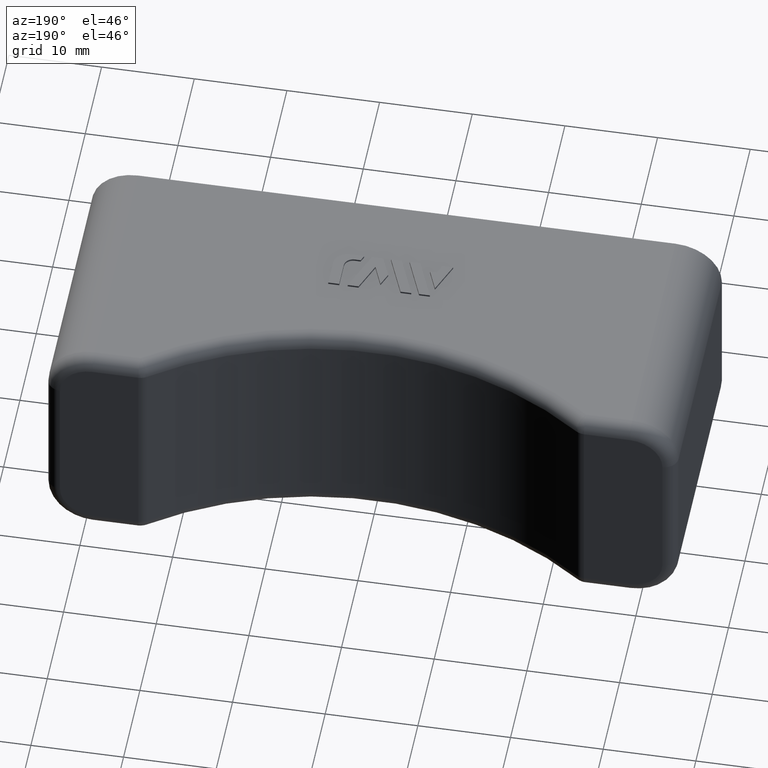
[diagram: clean part render]
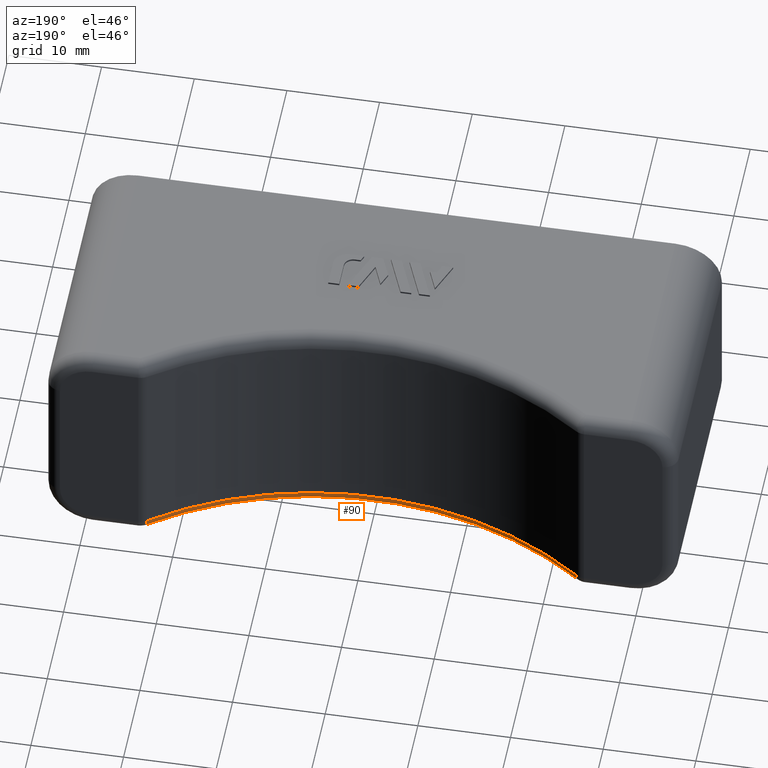
[diagram: same view with one face highlighted and labeled with its STEP entity id]
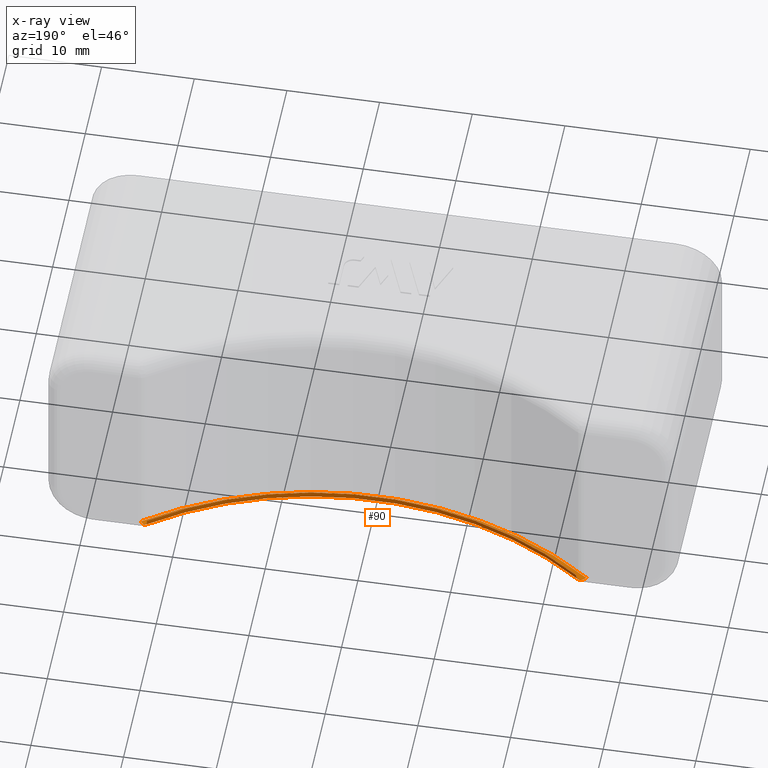
[diagram: x-ray of the same camera — body ghosted, the highlighted face saturated]
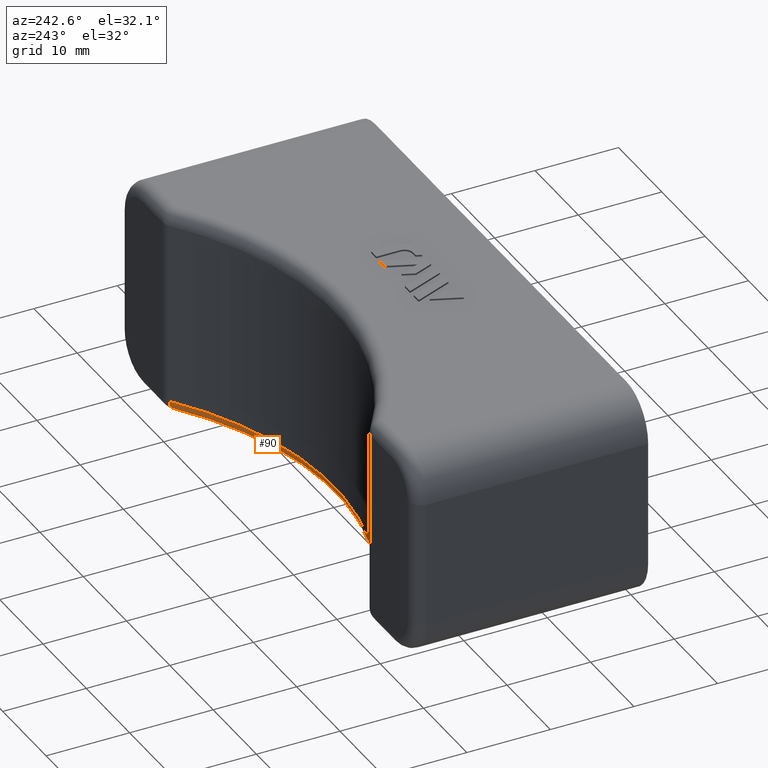
[diagram: same view with one face highlighted and labeled with its STEP entity id]
A machine part, auxiliary view. The second image highlights one B-rep face of the part: STEP entity #90.
The next image is the same camera in x-ray: the body ghosted, the highlighted face saturated — about 0% of this face is hidden behind the body in this view.
A second angle (auxiliary view) of the same face is appended — the face is thin or edge-on in the first view.
In plain terms, the highlighted toroidal blend (fillet) surface has major radius 40.15 mm and minor (blend) radius 1.5 mm.
Its self-contained STEP definition (entity closure, byte-faithful):
#90 = ADVANCED_FACE( '', ( #554 ), #555, .T. );
#554 = FACE_OUTER_BOUND( '', #1396, .T. );
#555 = TOROIDAL_SURFACE( '', #1397, 40.1500000000000, 1.50000000000000 );
#1396 = EDGE_LOOP( '', ( #2571, #2572, #2573, #2574 ) );
#1397 = AXIS2_PLACEMENT_3D( '', #2575, #2576, #2577 );
#2571 = ORIENTED_EDGE( '', *, *, #5667, .T. );
#2572 = ORIENTED_EDGE( '', *, *, #5664, .F. );
#2573 = ORIENTED_EDGE( '', *, *, #5668, .F. );
#2574 = ORIENTED_EDGE( '', *, *, #5669, .F. );
#2575 = CARTESIAN_POINT( '', ( 0.000000000000000, 58.6500000000000, -11.0000000000000 ) );
#2576 = DIRECTION( '', ( 0.000000000000000, 0.000000000000000, -1.00000000000000 ) );
#2577 = DIRECTION( '', ( -1.00000000000000, 0.000000000000000, 0.000000000000000 ) );
#5664 = EDGE_CURVE( '', #6981, #6986, #6987, .F. );
#5667 = EDGE_CURVE( '', #6991, #6986, #6992, .F. );
#5668 = EDGE_CURVE( '', #6993, #6981, #6994, .T. );
#5669 = EDGE_CURVE( '', #6991, #6993, #6995, .T. );
#6981 = VERTEX_POINT( '', #8953 );
#6986 = VERTEX_POINT( '', #8961 );
#6987 = CIRCLE( '', #8962, 40.1500000000000 );
#6991 = VERTEX_POINT( '', #8968 );
#6992 = CIRCLE( '', #8969, 1.50000000000000 );
#6993 = VERTEX_POINT( '', #8970 );
#6994 = CIRCLE( '', #8971, 1.50000000000000 );
#6995 = CIRCLE( '', #8972, 38.6500000000000 );
#8953 = CARTESIAN_POINT( '', ( -24.0499480248919, 26.5000000000000, -12.5000000000000 ) );
#8961 = CARTESIAN_POINT( '', ( 24.0499480248919, 26.5000000000000, -12.5000000000000 ) );
#8962 = AXIS2_PLACEMENT_3D( '', #10796, #10797, #10798 );
#8968 = CARTESIAN_POINT( '', ( 23.1514443626917, 27.7011207970112, -11.0000000000000 ) );
#8969 = AXIS2_PLACEMENT_3D( '', #10801, #10802, #10803 );
#8970 = CARTESIAN_POINT( '', ( -23.1514443626917, 27.7011207970112, -11.0000000000000 ) );
#8971 = AXIS2_PLACEMENT_3D( '', #10804, #10805, #10806 );
#8972 = AXIS2_PLACEMENT_3D( '', #10807, #10808, #10809 );
#10796 = CARTESIAN_POINT( '', ( 0.000000000000000, 58.6500000000000, -12.5000000000000 ) );
#10797 = DIRECTION( '', ( 0.000000000000000, 0.000000000000000, -1.00000000000000 ) );
#10798 = DIRECTION( '', ( -1.00000000000000, 0.000000000000000, 0.000000000000000 ) );
#10801 = CARTESIAN_POINT( '', ( 24.0499480248919, 26.5000000000000, -11.0000000000000 ) );
#10802 = DIRECTION( '', ( 0.800747198007473, 0.599002441466795, 0.000000000000000 ) );
#10803 = DIRECTION( '', ( -0.599002441466795, 0.800747198007473, 0.000000000000000 ) );
#10804 = CARTESIAN_POINT( '', ( -24.0499480248919, 26.5000000000000, -11.0000000000000 ) );
#10805 = DIRECTION( '', ( -0.800747198007473, 0.599002441466794, 1.85209995027495E-015 ) );
#10806 = DIRECTION( '', ( -0.599002441466794, -0.800747198007473, 1.02812200435118E-031 ) );
#10807 = CARTESIAN_POINT( '', ( 0.000000000000000, 58.6500000000000, -11.0000000000000 ) );
#10808 = DIRECTION( '', ( 0.000000000000000, 0.000000000000000, -1.00000000000000 ) );
#10809 = DIRECTION( '', ( -1.00000000000000, 0.000000000000000, 0.000000000000000 ) );